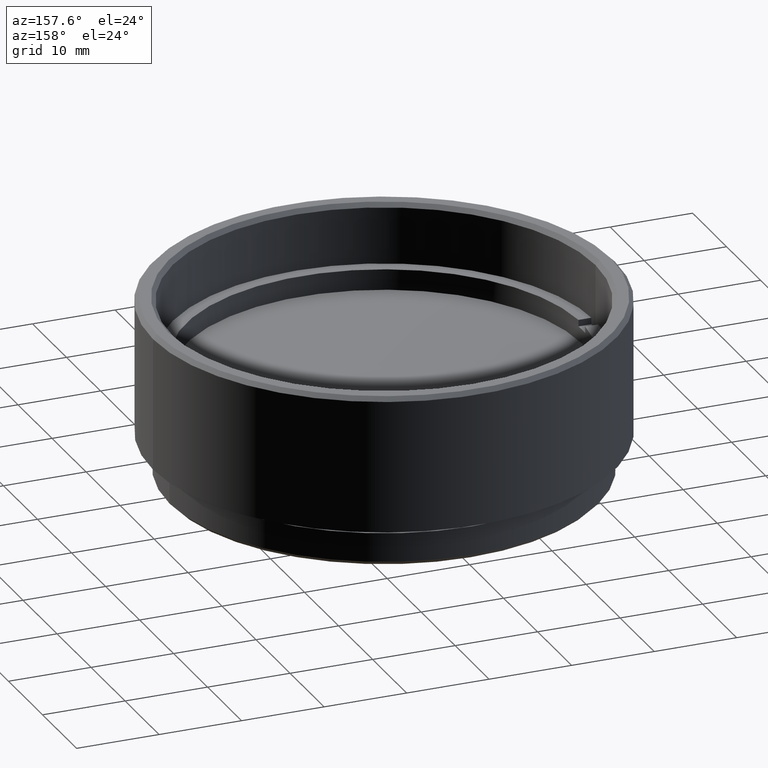
[diagram: clean part render]
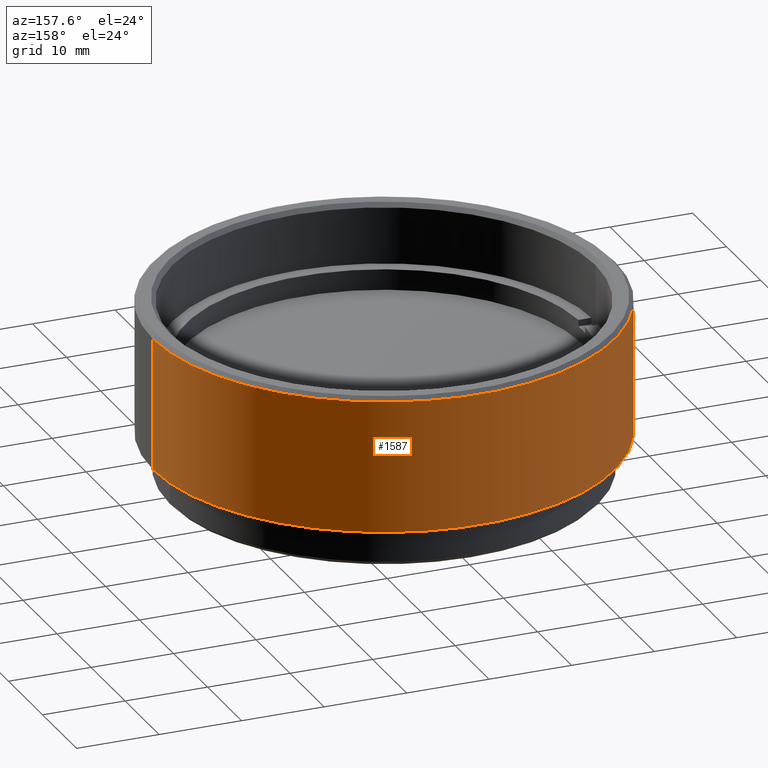
[diagram: same view with one face highlighted and labeled with its STEP entity id]
A machine part, auxiliary view. The second image highlights one B-rep face of the part: STEP entity #1587.
In plain terms, the highlighted cylindrical surface (partial cylindrical patch) has radius 28 mm, axis along (-0, -0, -1).
Its self-contained STEP definition (entity closure, byte-faithful):
#3 = FACE_OUTER_BOUND ( 'NONE', #766, .T. ) ;
#55 = AXIS2_PLACEMENT_3D ( 'NONE', #1643, #522, #1374 ) ;
#120 = CARTESIAN_POINT ( 'NONE',  ( 28.00000000000000000, 3.429011037612589276E-15, 21.50000000000000000 ) ) ;
#243 = EDGE_CURVE ( 'NONE', #544, #1249, #1337, .T. ) ;
#268 = VERTEX_POINT ( 'NONE', #1166 ) ;
#428 = EDGE_CURVE ( 'NONE', #471, #1249, #610, .T. ) ;
#443 = CARTESIAN_POINT ( 'NONE',  ( -28.00000000000000000, 0.000000000000000000, 5.000000000000000000 ) ) ;
#445 = ORIENTED_EDGE ( 'NONE', *, *, #428, .F. ) ;
#471 = VERTEX_POINT ( 'NONE', #443 ) ;
#516 = ORIENTED_EDGE ( 'NONE', *, *, #1696, .F. ) ;
#522 = DIRECTION ( 'NONE',  ( 0.000000000000000000, 0.000000000000000000, -1.000000000000000000 ) ) ;
#544 = VERTEX_POINT ( 'NONE', #1268 ) ;
#581 = ORIENTED_EDGE ( 'NONE', *, *, #1692, .T. ) ;
#610 = CIRCLE ( 'NONE', #1201, 28.00000000000000000 ) ;
#644 = VECTOR ( 'NONE', #1209, 1000.000000000000000 ) ;
#686 = CARTESIAN_POINT ( 'NONE',  ( 28.00000000000000000, 3.429011037612589276E-15, 5.000000000000000000 ) ) ;
#766 = EDGE_LOOP ( 'NONE', ( #581, #1322, #445, #516 ) ) ;
#824 = DIRECTION ( 'NONE',  ( -1.000000000000000000, 0.000000000000000000, 0.000000000000000000 ) ) ;
#944 = CARTESIAN_POINT ( 'NONE',  ( 0.000000000000000000, 0.000000000000000000, 21.50000000000000000 ) ) ;
#1166 = CARTESIAN_POINT ( 'NONE',  ( -28.00000000000000000, 0.000000000000000000, 20.99999999999999289 ) ) ;
#1181 = CIRCLE ( 'NONE', #55, 28.00000000000000000 ) ;
#1201 = AXIS2_PLACEMENT_3D ( 'NONE', #1264, #1527, #1389 ) ;
#1209 = DIRECTION ( 'NONE',  ( -0.000000000000000000, -0.000000000000000000, -1.000000000000000000 ) ) ;
#1249 = VERTEX_POINT ( 'NONE', #686 ) ;
#1264 = CARTESIAN_POINT ( 'NONE',  ( 0.000000000000000000, 0.000000000000000000, 5.000000000000000000 ) ) ;
#1268 = CARTESIAN_POINT ( 'NONE',  ( 28.00000000000000000, 3.429011037612589276E-15, 20.99999999999999289 ) ) ;
#1322 = ORIENTED_EDGE ( 'NONE', *, *, #243, .T. ) ;
#1337 = LINE ( 'NONE', #120, #1395 ) ;
#1367 = CARTESIAN_POINT ( 'NONE',  ( -28.00000000000000000, 0.000000000000000000, 21.50000000000000000 ) ) ;
#1374 = DIRECTION ( 'NONE',  ( 1.000000000000000000, 0.000000000000000000, 0.000000000000000000 ) ) ;
#1389 = DIRECTION ( 'NONE',  ( -1.000000000000000000, 0.000000000000000000, 0.000000000000000000 ) ) ;
#1395 = VECTOR ( 'NONE', #1450, 1000.000000000000000 ) ;
#1450 = DIRECTION ( 'NONE',  ( -0.000000000000000000, -0.000000000000000000, -1.000000000000000000 ) ) ;
#1496 = DIRECTION ( 'NONE',  ( -0.000000000000000000, -0.000000000000000000, -1.000000000000000000 ) ) ;
#1497 = LINE ( 'NONE', #1367, #644 ) ;
#1503 = CYLINDRICAL_SURFACE ( 'NONE', #1556, 28.00000000000000000 ) ;
#1527 = DIRECTION ( 'NONE',  ( 0.000000000000000000, 0.000000000000000000, -1.000000000000000000 ) ) ;
#1556 = AXIS2_PLACEMENT_3D ( 'NONE', #944, #1496, #824 ) ;
#1587 = ADVANCED_FACE ( 'NONE', ( #3 ), #1503, .T. ) ;
#1643 = CARTESIAN_POINT ( 'NONE',  ( 0.000000000000000000, 0.000000000000000000, 20.99999999999999289 ) ) ;
#1692 = EDGE_CURVE ( 'NONE', #268, #544, #1181, .T. ) ;
#1696 = EDGE_CURVE ( 'NONE', #268, #471, #1497, .T. ) ;